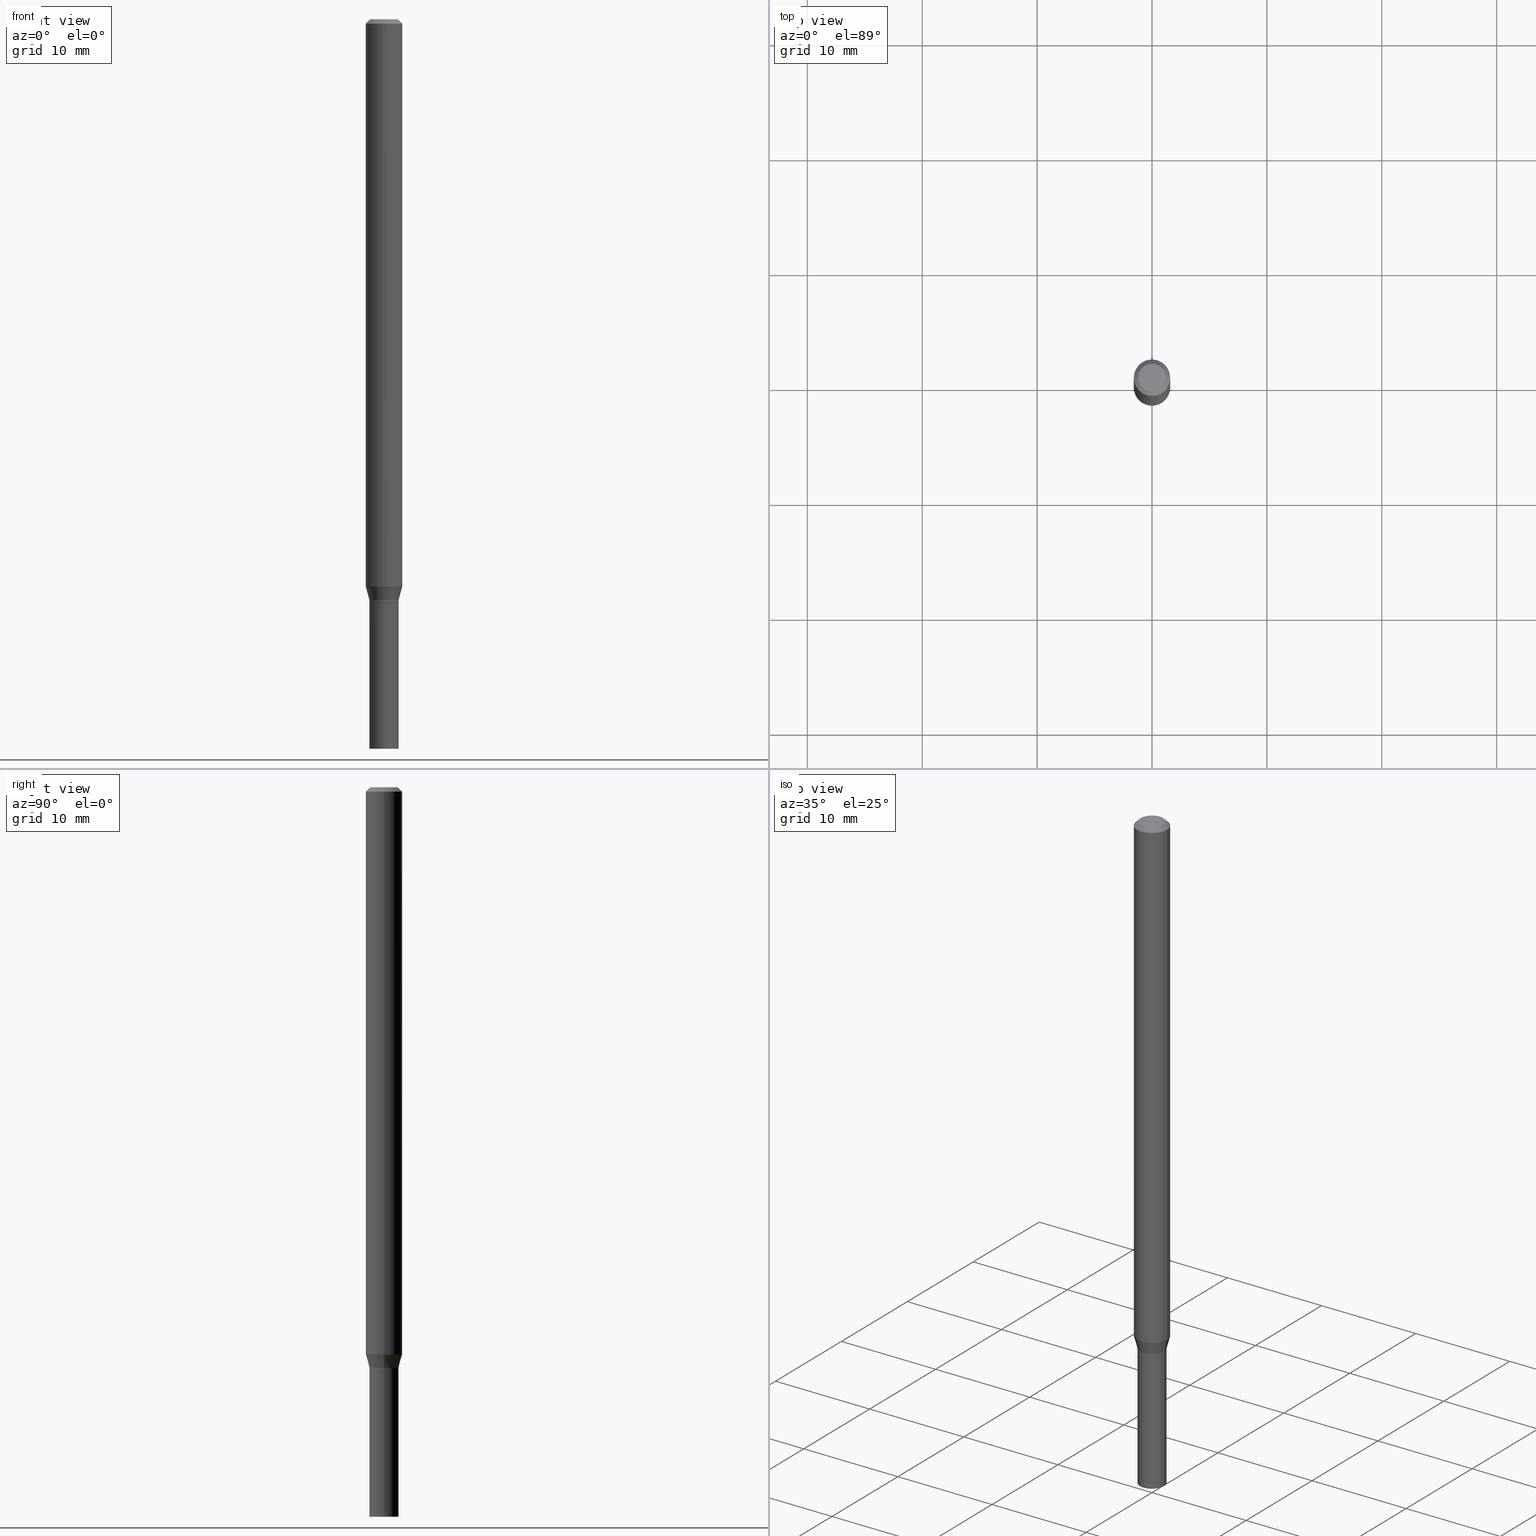
[diagram: canonical four-view strip — front | top / right | iso, engineering-drawing reading convention]
A machine part, canonical four-view strip (front | top / right | iso — engineering-drawing reading convention). The complete STEP part file that produces these views, byte-faithful:
ISO-10303-21;
HEADER;
FILE_DESCRIPTION (( 'STEP AP203' ),
    '1' );
FILE_NAME ('00607.STEP',
    '2024-03-19T22:00:35',
    ( '' ),
    ( '' ),
    'SwSTEP 2.0',
    'SolidWorks 2023',
    '' );
FILE_SCHEMA (( 'CONFIG_CONTROL_DESIGN' ));
ENDSEC;

DATA;
#1 = CIRCLE ( 'NONE', #52, 0.04999999999999965583 ) ;
#2 = CC_DESIGN_APPROVAL ( #128, ( #455 ) ) ;
#3 = ORIENTED_EDGE ( 'NONE', *, *, #288, .T. ) ;
#4 = CARTESIAN_POINT ( 'NONE',  ( 0.000000000000000000, 0.000000000000000000, 0.000000000000000000 ) ) ;
#5 = CARTESIAN_POINT ( 'NONE',  ( 0.000000000000000000, 0.000000000000000000, 0.000000000000000000 ) ) ;
#6 = DIRECTION ( 'NONE',  ( -2.445468806185136597E-29, 3.491481338843145583E-15, 1.000000000000000000 ) ) ;
#7 = EDGE_CURVE ( 'NONE', #125, #401, #287, .T. ) ;
#8 = VECTOR ( 'NONE', #408, 39.37007874015748854 ) ;
#9 = CIRCLE ( 'NONE', #73, 0.05000000000000000278 ) ;
#10 = ORIENTED_EDGE ( 'NONE', *, *, #91, .T. ) ;
#11 = EDGE_LOOP ( 'NONE', ( #299, #459 ) ) ;
#12 = ADVANCED_FACE ( 'NONE', ( #76 ), #369, .F. ) ;
#13 = ADVANCED_FACE ( 'NONE', ( #363 ), #239, .T. ) ;
#14 = SECURITY_CLASSIFICATION_LEVEL ( 'unclassified' ) ;
#15 = ORIENTED_EDGE ( 'NONE', *, *, #179, .T. ) ;
#16 = DIRECTION ( 'NONE',  ( 1.000000000000000000, -6.982962677686266711E-15, 4.876176775795935793E-29 ) ) ;
#17 = DATE_AND_TIME ( #261, #108 ) ;
#18 = DIRECTION ( 'NONE',  ( -2.438088387897960049E-29, 3.491481338843145188E-15, 1.000000000000000000 ) ) ;
#19 = AXIS2_PLACEMENT_3D ( 'NONE', #51, #156, #225 ) ;
#20 = EDGE_CURVE ( 'NONE', #105, #336, #206, .T. ) ;
#21 = ORIENTED_EDGE ( 'NONE', *, *, #219, .F. ) ;
#22 = DIRECTION ( 'NONE',  ( 1.000000000000000000, -6.982962677686267499E-15, 4.876176775795936353E-29 ) ) ;
#23 = DATE_TIME_ROLE ( 'classification_date' ) ;
#24 = DIRECTION ( 'NONE',  ( -2.445468806185136597E-29, 3.491481338843145583E-15, 1.000000000000000000 ) ) ;
#25 = ADVANCED_FACE ( 'NONE', ( #118 ), #335, .T. ) ;
#26 = CLOSED_SHELL ( 'NONE', ( #333, #360, #393, #442 ) ) ;
#27 = CARTESIAN_POINT ( 'NONE',  ( -0.04949999999999999539, -6.628594796310932821E-15, -2.000000000000000000 ) ) ;
#28 = PERSON_AND_ORGANIZATION ( #400, #387 ) ;
#29 = CARTESIAN_POINT ( 'NONE',  ( 4.866482924308422209E-29, -6.948047864297860305E-15, -1.989999999999999991 ) ) ;
#30 = EDGE_LOOP ( 'NONE', ( #378, #439 ) ) ;
#31 = ADVANCED_FACE ( 'NONE', ( #395 ), #280, .T. ) ;
#32 = AXIS2_PLACEMENT_3D ( 'NONE', #321, #275, #205 ) ;
#33 = DIRECTION ( 'NONE',  ( 1.000000000000000000, -6.982962677686266711E-15, 0.000000000000000000 ) ) ;
#34 = CARTESIAN_POINT ( 'NONE',  ( -0.04999999999999965583, -6.625945569136823198E-15, -1.999500000000000277 ) ) ;
#35 = CONICAL_SURFACE ( 'NONE', #101, 0.04999999999999963501, 0.2617993877991502960 ) ;
#36 = CIRCLE ( 'NONE', #113, 0.05000000000000000278 ) ;
#37 = DIRECTION ( 'NONE',  ( -2.445468806185136597E-29, 3.491481338843145583E-15, 1.000000000000000000 ) ) ;
#38 = ADVANCED_FACE ( 'NONE', ( #67 ), #222, .T. ) ;
#39 = DIRECTION ( 'NONE',  ( 1.000000000000000000, -6.982962677686266711E-15, 4.876176775795935793E-29 ) ) ;
#40 = CARTESIAN_POINT ( 'NONE',  ( 6.113672015462842613E-29, -8.728703347107864943E-15, -2.500000000000000000 ) ) ;
#41 = EDGE_CURVE ( 'NONE', #427, #158, #361, .T. ) ;
#42 = DIRECTION ( 'NONE',  ( -2.445468806185136597E-29, 3.491481338843145583E-15, 1.000000000000000000 ) ) ;
#43 = PERSON_AND_ORGANIZATION ( #400, #387 ) ;
#44 = CIRCLE ( 'NONE', #444, 0.04749999999999999362 ) ;
#45 = APPROVAL_PERSON_ORGANIZATION ( #132, #128, #302 ) ;
#46 = CARTESIAN_POINT ( 'NONE',  ( -0.06250000000000000000, 3.840629472727444916E-16, -0.01499999999999999944 ) ) ;
#47 = APPROVAL_STATUS ( 'not_yet_approved' ) ;
#48 = CYLINDRICAL_SURFACE ( 'NONE', #112, 0.06250000000000000000 ) ;
#49 = DIRECTION ( 'NONE',  ( -1.000000000000000000, 6.982962677686265922E-15, -4.876176775795935793E-29 ) ) ;
#50 = ORIENTED_EDGE ( 'NONE', *, *, #140, .F. ) ;
#51 = CARTESIAN_POINT ( 'NONE',  ( -8.549555613484746295E-45, 1.220649954903729740E-30, 3.496080421005988683E-16 ) ) ;
#52 = AXIS2_PLACEMENT_3D ( 'NONE', #95, #88, #92 ) ;
#53 = CALENDAR_DATE ( 2024, 19, 3 ) ;
#54 = DATE_TIME_ROLE ( 'creation_date' ) ;
#55 = DIRECTION ( 'NONE',  ( -2.445468806185136597E-29, 3.491481338843145583E-15, 1.000000000000000000 ) ) ;
#56 = COORDINATED_UNIVERSAL_TIME_OFFSET ( 5, 0, .BEHIND. ) ;
#57 = EDGE_LOOP ( 'NONE', ( #310, #15, #50, #454 ) ) ;
#58 = ADVANCED_FACE ( 'NONE', ( #68 ), #48, .T. ) ;
#59 = VECTOR ( 'NONE', #433, 39.37007874015748854 ) ;
#60 = ORIENTED_EDGE ( 'NONE', *, *, #177, .T. ) ;
#61 = MECHANICAL_CONTEXT ( 'NONE', #157, 'mechanical' ) ;
#62 = ORIENTED_EDGE ( 'NONE', *, *, #242, .F. ) ;
#63 = AXIS2_PLACEMENT_3D ( 'NONE', #346, #350, #22 ) ;
#64 = LINE ( 'NONE', #210, #130 ) ;
#65 = LINE ( 'NONE', #145, #405 ) ;
#66 = ADVANCED_FACE ( 'NONE', ( #213 ), #260, .T. ) ;
#67 = FACE_OUTER_BOUND ( 'NONE', #153, .T. ) ;
#68 = FACE_OUTER_BOUND ( 'NONE', #197, .T. ) ;
#69 = ORIENTED_EDGE ( 'NONE', *, *, #465, .T. ) ;
#70 = DIRECTION ( 'NONE',  ( -2.445468806185136597E-29, 3.491481338843145583E-15, 1.000000000000000000 ) ) ;
#71 = CONICAL_SURFACE ( 'NONE', #80, 0.04999999999999963501, 0.2617993877991502960 ) ;
#72 = DATE_AND_TIME ( #119, #170 ) ;
#73 = AXIS2_PLACEMENT_3D ( 'NONE', #161, #55, #309 ) ;
#74 = CARTESIAN_POINT ( 'NONE',  ( -0.06250000000000000000, -6.341078832569778591E-15, -1.943349364905387899 ) ) ;
#75 = FACE_OUTER_BOUND ( 'NONE', #57, .T. ) ;
#76 = FACE_OUTER_BOUND ( 'NONE', #30, .T. ) ;
#77 = PRODUCT_DEFINITION_SHAPE ( 'NONE', 'NONE',  #256 ) ;
#78 = CARTESIAN_POINT ( 'NONE',  ( 0.000000000000000000, 0.000000000000000000, 0.000000000000000000 ) ) ;
#79 = APPROVAL_ROLE ( '' ) ;
#80 = AXIS2_PLACEMENT_3D ( 'NONE', #217, #6, #366 ) ;
#81 = APPROVAL_PERSON_ORGANIZATION ( #102, #413, #458 ) ;
#82 = DIRECTION ( 'NONE',  ( -2.438088387897960049E-29, 3.491481338843145188E-15, 1.000000000000000000 ) ) ;
#83 = LINE ( 'NONE', #262, #207 ) ;
#84 = DIRECTION ( 'NONE',  ( -2.445468806185136597E-29, 3.491481338843145583E-15, 1.000000000000000000 ) ) ;
#85 = CARTESIAN_POINT ( 'NONE',  ( -0.04749999999999999362, 3.578768372314216422E-16, 3.496080421005964524E-16 ) ) ;
#86 = APPROVAL_DATE_TIME ( #17, #128 ) ;
#87 = ORIENTED_EDGE ( 'NONE', *, *, #124, .T. ) ;
#88 = DIRECTION ( 'NONE',  ( -2.445468806185136597E-29, 3.491481338843145583E-15, 1.000000000000000000 ) ) ;
#89 = EDGE_LOOP ( 'NONE', ( #176, #149, #94, #10 ) ) ;
#90 = AXIS2_PLACEMENT_3D ( 'NONE', #353, #42, #188 ) ;
#91 = EDGE_CURVE ( 'NONE', #336, #105, #186, .T. ) ;
#92 = DIRECTION ( 'NONE',  ( 1.000000000000000000, -6.982962677686264344E-15, 0.000000000000000000 ) ) ;
#93 = VECTOR ( 'NONE', #367, 39.37007874015748143 ) ;
#94 = ORIENTED_EDGE ( 'NONE', *, *, #109, .T. ) ;
#95 = CARTESIAN_POINT ( 'NONE',  ( 4.889714877967180953E-29, -6.981216937016870451E-15, -1.999500000000000277 ) ) ;
#96 = CARTESIAN_POINT ( 'NONE',  ( 4.890937612370273194E-29, -6.982962677686291165E-15, -2.000000000000000000 ) ) ;
#97 = CC_DESIGN_DATE_AND_TIME_ASSIGNMENT ( #200, #23, ( #204 ) ) ;
#98 = FACE_OUTER_BOUND ( 'NONE', #173, .T. ) ;
#99 = DATE_AND_TIME ( #133, #187 ) ;
#100 = ORIENTED_EDGE ( 'NONE', *, *, #388, .T. ) ;
#101 = AXIS2_PLACEMENT_3D ( 'NONE', #258, #215, #301 ) ;
#102 = PERSON_AND_ORGANIZATION ( #400, #387 ) ;
#103 = DIRECTION ( 'NONE',  ( -2.445468806185136597E-29, 3.491481338843145583E-15, 1.000000000000000000 ) ) ;
#104 = CARTESIAN_POINT ( 'NONE',  ( 0.04999999999999964889, -3.491481338843108703E-16, 2.438088387897950731E-30 ) ) ;
#105 = VERTEX_POINT ( 'NONE', #181 ) ;
#106 = CARTESIAN_POINT ( 'NONE',  ( -0.05000000000000000278, 3.552713678800501127E-16, -2.459467545127453311E-30 ) ) ;
#107 = CIRCLE ( 'NONE', #90, 0.06250000000000000000 ) ;
#108 = LOCAL_TIME ( 18, 0, 35.00000000000000000, #162 ) ;
#109 = EDGE_CURVE ( 'NONE', #220, #336, #290, .T. ) ;
#110 = DIRECTION ( 'NONE',  ( 1.000000000000000000, -6.982962677686274599E-15, 0.000000000000000000 ) ) ;
#111 = ORIENTED_EDGE ( 'NONE', *, *, #456, .T. ) ;
#112 = AXIS2_PLACEMENT_3D ( 'NONE', #78, #211, #16 ) ;
#113 = AXIS2_PLACEMENT_3D ( 'NONE', #448, #123, #266 ) ;
#114 = EDGE_LOOP ( 'NONE', ( #416, #137, #426, #232 ) ) ;
#115 = EDGE_LOOP ( 'NONE', ( #255, #402, #421, #218 ) ) ;
#116 = ORIENTED_EDGE ( 'NONE', *, *, #212, .F. ) ;
#117 = CARTESIAN_POINT ( 'NONE',  ( 0.000000000000000000, 0.000000000000000000, 0.000000000000000000 ) ) ;
#118 = FACE_OUTER_BOUND ( 'NONE', #263, .T. ) ;
#119 = CALENDAR_DATE ( 2024, 19, 3 ) ;
#120 = AXIS2_PLACEMENT_3D ( 'NONE', #229, #457, #121 ) ;
#121 = DIRECTION ( 'NONE',  ( 1.000000000000000000, -6.982962677686267499E-15, 4.876176775795936353E-29 ) ) ;
#122 = ORIENTED_EDGE ( 'NONE', *, *, #465, .F. ) ;
#123 = DIRECTION ( 'NONE',  ( -2.445468806185136597E-29, 3.491481338843145583E-15, 1.000000000000000000 ) ) ;
#124 = EDGE_CURVE ( 'NONE', #220, #253, #44, .T. ) ;
#125 = VERTEX_POINT ( 'NONE', #356 ) ;
#126 = CARTESIAN_POINT ( 'NONE',  ( 0.04949999999999999539, -7.328619330231760705E-15, -2.000000000000000000 ) ) ;
#127 = PERSON_AND_ORGANIZATION ( #400, #387 ) ;
#128 = APPROVAL ( #47, 'UNSPECIFIED' ) ;
#129 = DIRECTION ( 'NONE',  ( -0.7071067811865715536, 7.493145998870439357E-15, 0.7071067811865232589 ) ) ;
#130 = VECTOR ( 'NONE', #464, 39.37007874015748854 ) ;
#131 = VERTEX_POINT ( 'NONE', #450 ) ;
#132 = PERSON_AND_ORGANIZATION ( #400, #387 ) ;
#133 = CALENDAR_DATE ( 2024, 19, 3 ) ;
#134 = ORIENTED_EDGE ( 'NONE', *, *, #252, .T. ) ;
#135 = EDGE_LOOP ( 'NONE', ( #339, #111, #284, #380 ) ) ;
#136 = LOCAL_TIME ( 18, 0, 35.00000000000000000, #155 ) ;
#137 = ORIENTED_EDGE ( 'NONE', *, *, #317, .T. ) ;
#138 = EDGE_CURVE ( 'NONE', #195, #131, #141, .T. ) ;
#139 = CARTESIAN_POINT ( 'NONE',  ( 0.04999999999999963501, -7.297195998182170485E-15, -1.989999999999999991 ) ) ;
#140 = EDGE_CURVE ( 'NONE', #332, #461, #107, .T. ) ;
#141 = CIRCLE ( 'NONE', #315, 0.04999999999999963501 ) ;
#142 = AXIS2_PLACEMENT_3D ( 'NONE', #224, #374, #257 ) ;
#143 = CARTESIAN_POINT ( 'NONE',  ( 0.04949999999999999539, -7.328619330231760705E-15, -2.000000000000000000 ) ) ;
#144 = DESIGN_CONTEXT ( 'detailed design', #236, 'design' ) ;
#145 = CARTESIAN_POINT ( 'NONE',  ( -0.06250000000000000000, 4.440892098500626162E-16, -3.074334431409316114E-30 ) ) ;
#146 = LINE ( 'NONE', #251, #93 ) ;
#147 = CARTESIAN_POINT ( 'NONE',  ( -0.04999999999999963501, -6.592776496417813052E-15, -1.989999999999999991 ) ) ;
#148 = LINE ( 'NONE', #104, #364 ) ;
#149 = ORIENTED_EDGE ( 'NONE', *, *, #124, .F. ) ;
#150 = DIRECTION ( 'NONE',  ( -2.445468806185136597E-29, 3.491481338843145583E-15, 1.000000000000000000 ) ) ;
#151 = CARTESIAN_POINT ( 'NONE',  ( 4.890937612370273194E-29, -6.982962677686291165E-15, -2.000000000000000000 ) ) ;
#152 = ADVANCED_FACE ( 'NONE', ( #247 ), #35, .T. ) ;
#153 = EDGE_LOOP ( 'NONE', ( #325, #451, #234, #21 ) ) ;
#154 = DIRECTION ( 'NONE',  ( 2.445468806185136597E-29, -3.491481338843145583E-15, -1.000000000000000000 ) ) ;
#155 = COORDINATED_UNIVERSAL_TIME_OFFSET ( 5, 0, .BEHIND. ) ;
#156 = DIRECTION ( 'NONE',  ( -2.445468806185136597E-29, 3.491481338843145583E-15, 1.000000000000000000 ) ) ;
#157 = APPLICATION_CONTEXT ( 'configuration controlled 3d designs of mechanical parts and assemblies' ) ;
#158 = VERTEX_POINT ( 'NONE', #338 ) ;
#159 = CARTESIAN_POINT ( 'NONE',  ( -8.549555613484746295E-45, 1.220649954903729740E-30, 3.496080421005988683E-16 ) ) ;
#160 = CIRCLE ( 'NONE', #358, 0.04999999999999965583 ) ;
#161 = CARTESIAN_POINT ( 'NONE',  ( 4.890937612370273754E-29, -6.982962677686291954E-15, -2.000000000000000444 ) ) ;
#162 = COORDINATED_UNIVERSAL_TIME_OFFSET ( 5, 0, .BEHIND. ) ;
#163 = ORIENTED_EDGE ( 'NONE', *, *, #456, .F. ) ;
#164 = DIRECTION ( 'NONE',  ( 2.438088387897960049E-29, -3.491481338843145188E-15, -1.000000000000000000 ) ) ;
#165 = ADVANCED_FACE ( 'NONE', ( #75 ), #71, .T. ) ;
#166 = DIRECTION ( 'NONE',  ( 1.000000000000000000, -6.982962677686267499E-15, 0.000000000000000000 ) ) ;
#167 = CC_DESIGN_PERSON_AND_ORGANIZATION_ASSIGNMENT ( #238, #422, ( #256 ) ) ;
#168 = FACE_OUTER_BOUND ( 'NONE', #438, .T. ) ;
#169 = DIRECTION ( 'NONE',  ( 2.438088387897960049E-29, -3.491481338843145188E-15, -1.000000000000000000 ) ) ;
#170 = LOCAL_TIME ( 18, 0, 35.00000000000000000, #340 ) ;
#171 = APPROVAL_DATE_TIME ( #99, #413 ) ;
#172 = VERTEX_POINT ( 'NONE', #298 ) ;
#173 = EDGE_LOOP ( 'NONE', ( #362, #376, #243, #122 ) ) ;
#174 = ORIENTED_EDGE ( 'NONE', *, *, #41, .T. ) ;
#175 = VECTOR ( 'NONE', #392, 39.37007874015748143 ) ;
#176 = ORIENTED_EDGE ( 'NONE', *, *, #288, .F. ) ;
#177 = EDGE_CURVE ( 'NONE', #401, #125, #230, .T. ) ;
#178 = CC_DESIGN_DATE_AND_TIME_ASSIGNMENT ( #351, #54, ( #256 ) ) ;
#179 = EDGE_CURVE ( 'NONE', #131, #461, #396, .T. ) ;
#180 = CARTESIAN_POINT ( 'NONE',  ( 3.668203209277705088E-31, -5.237222008264718399E-17, -0.01499999999999999944 ) ) ;
#181 = CARTESIAN_POINT ( 'NONE',  ( 0.06250000000000000000, -4.888073874380388472E-16, -0.01499999999999999944 ) ) ;
#182 = CC_DESIGN_APPROVAL ( #413, ( #256 ) ) ;
#183 = LINE ( 'NONE', #334, #259 ) ;
#184 = CARTESIAN_POINT ( 'NONE',  ( 4.890937612370273194E-29, -6.982962677686291165E-15, -2.000000000000000000 ) ) ;
#185 = DIRECTION ( 'NONE',  ( -2.445468806185136877E-29, 3.491481338843145188E-15, 1.000000000000000000 ) ) ;
#186 = CIRCLE ( 'NONE', #435, 0.06250000000000000000 ) ;
#187 = LOCAL_TIME ( 18, 0, 35.00000000000000000, #56 ) ;
#188 = DIRECTION ( 'NONE',  ( 1.000000000000000000, -6.982962677686262766E-15, 0.000000000000000000 ) ) ;
#189 = ORIENTED_EDGE ( 'NONE', *, *, #179, .F. ) ;
#190 = ADVANCED_FACE ( 'NONE', ( #452 ), #415, .T. ) ;
#191 = PERSON_AND_ORGANIZATION_ROLE ( 'creator' ) ;
#192 = CC_DESIGN_PERSON_AND_ORGANIZATION_ASSIGNMENT ( #311, #441, ( #204 ) ) ;
#193 = FACE_OUTER_BOUND ( 'NONE', #115, .T. ) ;
#194 = DIRECTION ( 'NONE',  ( 0.2588190451025216832, 1.565188264969619798E-15, 0.9659258262890679791 ) ) ;
#195 = VERTEX_POINT ( 'NONE', #139 ) ;
#196 = AXIS2_PLACEMENT_3D ( 'NONE', #337, #150, #300 ) ;
#197 = EDGE_LOOP ( 'NONE', ( #163, #423, #352, #228 ) ) ;
#198 = PLANE ( 'NONE',  #324 ) ;
#199 = EDGE_CURVE ( 'NONE', #463, #131, #323, .T. ) ;
#200 = DATE_AND_TIME ( #53, #136 ) ;
#201 = FACE_OUTER_BOUND ( 'NONE', #398, .T. ) ;
#202 = PLANE ( 'NONE',  #231 ) ;
#203 = COORDINATED_UNIVERSAL_TIME_OFFSET ( 5, 0, .BEHIND. ) ;
#204 = SECURITY_CLASSIFICATION ( '', '', #14 ) ;
#205 = DIRECTION ( 'NONE',  ( 1.000000000000000000, 0.000000000000000000, 0.000000000000000000 ) ) ;
#206 = CIRCLE ( 'NONE', #142, 0.06250000000000000000 ) ;
#207 = VECTOR ( 'NONE', #194, 39.37007874015748143 ) ;
#208 = CC_DESIGN_PERSON_AND_ORGANIZATION_ASSIGNMENT ( #43, #191, ( #455 ) ) ;
#209 = DIRECTION ( 'NONE',  ( -1.000000000000000000, 6.982962677686266711E-15, 0.000000000000000000 ) ) ;
#210 = CARTESIAN_POINT ( 'NONE',  ( 0.06250000000000000000, -4.811533449433679005E-16, -0.01499999999999999944 ) ) ;
#211 = DIRECTION ( 'NONE',  ( -2.445468806185136597E-29, 3.491481338843145583E-15, 1.000000000000000000 ) ) ;
#212 = EDGE_CURVE ( 'NONE', #401, #345, #146, .T. ) ;
#213 = FACE_OUTER_BOUND ( 'NONE', #135, .T. ) ;
#214 = AXIS2_PLACEMENT_3D ( 'NONE', #96, #283, #365 ) ;
#215 = DIRECTION ( 'NONE',  ( -2.445468806185136597E-29, 3.491481338843145583E-15, 1.000000000000000000 ) ) ;
#216 = ORIENTED_EDGE ( 'NONE', *, *, #317, .F. ) ;
#217 = CARTESIAN_POINT ( 'NONE',  ( 4.866482924308422209E-29, -6.948047864297860305E-15, -1.989999999999999991 ) ) ;
#218 = ORIENTED_EDGE ( 'NONE', *, *, #388, .F. ) ;
#219 = EDGE_CURVE ( 'NONE', #158, #195, #148, .T. ) ;
#220 = VERTEX_POINT ( 'NONE', #85 ) ;
#221 =( NAMED_UNIT ( * ) SI_UNIT ( $, .STERADIAN. ) SOLID_ANGLE_UNIT ( ) );
#222 = CYLINDRICAL_SURFACE ( 'NONE', #404, 0.04999999999999964889 ) ;
#223 = CARTESIAN_POINT ( 'NONE',  ( -0.04999999999999964889, 3.552713678800475982E-16, -2.459467545127435795E-30 ) ) ;
#224 = CARTESIAN_POINT ( 'NONE',  ( 3.668203209277705088E-31, -5.237222008264718399E-17, -0.01499999999999999944 ) ) ;
#225 = DIRECTION ( 'NONE',  ( 1.000000000000000000, -6.982962677686267499E-15, 4.852736867747366768E-29 ) ) ;
#226 = ORIENTED_EDGE ( 'NONE', *, *, #20, .T. ) ;
#227 = PERSON_AND_ORGANIZATION ( #400, #387 ) ;
#228 = ORIENTED_EDGE ( 'NONE', *, *, #91, .F. ) ;
#229 = CARTESIAN_POINT ( 'NONE',  ( 0.000000000000000000, 0.000000000000000000, 0.000000000000000000 ) ) ;
#230 = CIRCLE ( 'NONE', #357, 0.05000000000000000278 ) ;
#231 = AXIS2_PLACEMENT_3D ( 'NONE', #341, #169, #319 ) ;
#232 = ORIENTED_EDGE ( 'NONE', *, *, #41, .F. ) ;
#233 = CYLINDRICAL_SURFACE ( 'NONE', #63, 0.05000000000000000278 ) ;
#234 = ORIENTED_EDGE ( 'NONE', *, *, #138, .F. ) ;
#235 = APPROVAL_STATUS ( 'not_yet_approved' ) ;
#236 = APPLICATION_CONTEXT ( 'configuration controlled 3d designs of mechanical parts and assemblies' ) ;
#237 = CYLINDRICAL_SURFACE ( 'NONE', #271, 0.04999999999999964889 ) ;
#238 = PERSON_AND_ORGANIZATION ( #400, #387 ) ;
#239 = CONICAL_SURFACE ( 'NONE', #270, 0.06250000000000000000, 0.7853981633974367327 ) ;
#240 = APPROVAL_STATUS ( 'not_yet_approved' ) ;
#241 = CARTESIAN_POINT ( 'NONE',  ( 4.890937612370273194E-29, -6.982962677686291165E-15, -2.000000000000000000 ) ) ;
#242 = EDGE_CURVE ( 'NONE', #463, #158, #160, .T. ) ;
#243 = ORIENTED_EDGE ( 'NONE', *, *, #219, .T. ) ;
#244 = CIRCLE ( 'NONE', #297, 0.04949999999999999539 ) ;
#245 = ORIENTED_EDGE ( 'NONE', *, *, #294, .F. ) ;
#246 =( NAMED_UNIT ( * ) PLANE_ANGLE_UNIT ( ) SI_UNIT ( $, .RADIAN. ) );
#247 = FACE_OUTER_BOUND ( 'NONE', #385, .T. ) ;
#248 = MANIFOLD_SOLID_BREP ( 'Body-Move/Copy2[1]', #26 ) ;
#249 = VERTEX_POINT ( 'NONE', #27 ) ;
#250 = LENGTH_MEASURE_WITH_UNIT ( LENGTH_MEASURE( 0.02539999999999999897 ), #292 );
#251 = CARTESIAN_POINT ( 'NONE',  ( 0.05000000000000000278, -3.491481338843133848E-16, 2.438088387897968247E-30 ) ) ;
#252 = EDGE_CURVE ( 'NONE', #249, #427, #381, .T. ) ;
#253 = VERTEX_POINT ( 'NONE', #368 ) ;
#254 = CC_DESIGN_PERSON_AND_ORGANIZATION_ASSIGNMENT ( #28, #279, ( #265 ) ) ;
#255 = ORIENTED_EDGE ( 'NONE', *, *, #277, .F. ) ;
#256 = PRODUCT_DEFINITION ( 'UNKNOWN', '', #455, #144 ) ;
#257 = DIRECTION ( 'NONE',  ( 1.000000000000000000, -6.982962677686266711E-15, 0.000000000000000000 ) ) ;
#258 = CARTESIAN_POINT ( 'NONE',  ( 4.866482924308422209E-29, -6.948047864297860305E-15, -1.989999999999999991 ) ) ;
#259 = VECTOR ( 'NONE', #285, 39.37007874015748143 ) ;
#260 = CYLINDRICAL_SURFACE ( 'NONE', #389, 0.06250000000000000000 ) ;
#261 = CALENDAR_DATE ( 2024, 19, 3 ) ;
#262 = CARTESIAN_POINT ( 'NONE',  ( 0.04999999999999963501, -7.297195998182170485E-15, -1.989999999999999991 ) ) ;
#263 = EDGE_LOOP ( 'NONE', ( #216, #134, #174, #62 ) ) ;
#264 = DIRECTION ( 'NONE',  ( 1.000000000000000000, -6.982962677686265922E-15, 4.876176775795935793E-29 ) ) ;
#265 = PRODUCT ( '00607', '00607', '', ( #61 ) ) ;
#266 = DIRECTION ( 'NONE',  ( 1.000000000000000000, -6.982962677686274599E-15, 0.000000000000000000 ) ) ;
#267 = DIRECTION ( 'NONE',  ( -2.445468806185136597E-29, 3.491481338843145583E-15, 1.000000000000000000 ) ) ;
#268 = CARTESIAN_POINT ( 'NONE',  ( 4.890937612370273194E-29, -6.982962677686291165E-15, -2.000000000000000000 ) ) ;
#269 = ORIENTED_EDGE ( 'NONE', *, *, #371, .T. ) ;
#270 = AXIS2_PLACEMENT_3D ( 'NONE', #180, #154, #434 ) ;
#271 = AXIS2_PLACEMENT_3D ( 'NONE', #5, #70, #39 ) ;
#272 = CARTESIAN_POINT ( 'NONE',  ( -0.04949999999999999539, -6.631244023485041655E-15, -2.000000000000000000 ) ) ;
#273 = ORIENTED_EDGE ( 'NONE', *, *, #328, .T. ) ;
#274 = EDGE_CURVE ( 'NONE', #332, #105, #183, .T. ) ;
#275 = DIRECTION ( 'NONE',  ( 0.000000000000000000, 0.000000000000000000, 1.000000000000000000 ) ) ;
#276 = DIRECTION ( 'NONE',  ( -2.445468806185136597E-29, 3.491481338843145583E-15, 1.000000000000000000 ) ) ;
#277 = EDGE_CURVE ( 'NONE', #125, #172, #429, .T. ) ;
#278 = ORIENTED_EDGE ( 'NONE', *, *, #328, .F. ) ;
#279 = PERSON_AND_ORGANIZATION_ROLE ( 'design_owner' ) ;
#280 = CONICAL_SURFACE ( 'NONE', #296, 0.06250000000000000000, 0.7853981633974367327 ) ;
#281 = CIRCLE ( 'NONE', #289, 0.06250000000000000000 ) ;
#282 = DIMENSIONAL_EXPONENTS ( 1.000000000000000000, 0.000000000000000000, 0.000000000000000000, 0.000000000000000000, 0.000000000000000000, 0.000000000000000000, 0.000000000000000000 ) ;
#283 = DIRECTION ( 'NONE',  ( -2.445468806185136597E-29, 3.491481338843145583E-15, 1.000000000000000000 ) ) ;
#284 = ORIENTED_EDGE ( 'NONE', *, *, #20, .F. ) ;
#285 = DIRECTION ( 'NONE',  ( -2.445468806185136877E-29, 3.491481338843145188E-15, 1.000000000000000000 ) ) ;
#286 = DIRECTION ( 'NONE',  ( 1.000000000000000000, -6.982962677686266711E-15, 4.876176775795935793E-29 ) ) ;
#287 = CIRCLE ( 'NONE', #305, 0.05000000000000000278 ) ;
#288 = EDGE_CURVE ( 'NONE', #253, #105, #64, .T. ) ;
#289 = AXIS2_PLACEMENT_3D ( 'NONE', #462, #37, #437 ) ;
#290 = LINE ( 'NONE', #46, #8 ) ;
#291 =( CONVERSION_BASED_UNIT ( 'INCH', #250 ) LENGTH_UNIT ( ) NAMED_UNIT ( #282 ) );
#292 =( LENGTH_UNIT ( ) NAMED_UNIT ( * ) SI_UNIT ( $, .METRE. ) );
#293 = SHAPE_DEFINITION_REPRESENTATION ( #77, #326 ) ;
#294 = EDGE_CURVE ( 'NONE', #461, #332, #281, .T. ) ;
#295 = DIRECTION ( 'NONE',  ( 1.000000000000000000, -6.982962677686265133E-15, 0.000000000000000000 ) ) ;
#296 = AXIS2_PLACEMENT_3D ( 'NONE', #329, #303, #209 ) ;
#297 = AXIS2_PLACEMENT_3D ( 'NONE', #268, #24, #382 ) ;
#298 = CARTESIAN_POINT ( 'NONE',  ( -0.05000000000000000278, -7.500561644517028040E-15, -2.000000000000000444 ) ) ;
#299 = ORIENTED_EDGE ( 'NONE', *, *, #177, .F. ) ;
#300 = DIRECTION ( 'NONE',  ( 1.000000000000000000, -6.982962677686267499E-15, 0.000000000000000000 ) ) ;
#301 = DIRECTION ( 'NONE',  ( 1.000000000000000000, -6.982962677686267499E-15, 0.000000000000000000 ) ) ;
#302 = APPROVAL_ROLE ( '' ) ;
#303 = DIRECTION ( 'NONE',  ( 2.445468806185136597E-29, -3.491481338843145583E-15, -1.000000000000000000 ) ) ;
#304 = CARTESIAN_POINT ( 'NONE',  ( 6.198122052593289668E-29, -8.607766087339451973E-15, -2.500000000000000000 ) ) ;
#305 = AXIS2_PLACEMENT_3D ( 'NONE', #40, #267, #412 ) ;
#306 = CIRCLE ( 'NONE', #19, 0.04749999999999999362 ) ;
#307 = DIRECTION ( 'NONE',  ( -2.445468806185136597E-29, 3.491481338843145583E-15, 1.000000000000000000 ) ) ;
#308 = DIRECTION ( 'NONE',  ( -2.445468806185136877E-29, 3.491481338843145188E-15, 1.000000000000000000 ) ) ;
#309 = DIRECTION ( 'NONE',  ( 1.000000000000000000, -6.982962677686274599E-15, 0.000000000000000000 ) ) ;
#310 = ORIENTED_EDGE ( 'NONE', *, *, #138, .T. ) ;
#311 = PERSON_AND_ORGANIZATION ( #400, #387 ) ;
#312 = ORIENTED_EDGE ( 'NONE', *, *, #371, .F. ) ;
#313 = CARTESIAN_POINT ( 'NONE',  ( 0.05000000000000000278, -9.077851480992178278E-15, -2.500000000000000000 ) ) ;
#314 = CYLINDRICAL_SURFACE ( 'NONE', #120, 0.05000000000000000278 ) ;
#315 = AXIS2_PLACEMENT_3D ( 'NONE', #29, #84, #166 ) ;
#316 = CIRCLE ( 'NONE', #196, 0.04999999999999963501 ) ;
#317 = EDGE_CURVE ( 'NONE', #249, #463, #445, .T. ) ;
#318 = PRODUCT_RELATED_PRODUCT_CATEGORY ( 'detail', '', ( #265 ) ) ;
#319 = DIRECTION ( 'NONE',  ( -1.000000000000000000, 6.982962677686265922E-15, -4.876176775795935793E-29 ) ) ;
#320 = CALENDAR_DATE ( 2024, 19, 3 ) ;
#321 = CARTESIAN_POINT ( 'NONE',  ( 0.000000000000000000, 0.000000000000000000, 0.000000000000000000 ) ) ;
#322 = ORIENTED_EDGE ( 'NONE', *, *, #109, .F. ) ;
#323 = LINE ( 'NONE', #223, #397 ) ;
#324 = AXIS2_PLACEMENT_3D ( 'NONE', #304, #18, #409 ) ;
#325 = ORIENTED_EDGE ( 'NONE', *, *, #348, .T. ) ;
#326 = ADVANCED_BREP_SHAPE_REPRESENTATION ( '00607', ( #248, #411, #32 ), #390 ) ;
#327 = DIRECTION ( 'NONE',  ( -2.445468806185136877E-29, 3.491481338843145188E-15, 1.000000000000000000 ) ) ;
#328 = EDGE_CURVE ( 'NONE', #253, #220, #306, .T. ) ;
#329 = CARTESIAN_POINT ( 'NONE',  ( 3.668203209277705088E-31, -5.237222008264718399E-17, -0.01499999999999999944 ) ) ;
#330 = DIRECTION ( 'NONE',  ( 1.000000000000000000, -6.982962677686266711E-15, 4.876176775795935793E-29 ) ) ;
#331 = UNCERTAINTY_MEASURE_WITH_UNIT (LENGTH_MEASURE( 1.000000000000000082E-05 ), #291, 'distance_accuracy_value', 'NONE');
#332 = VERTEX_POINT ( 'NONE', #414 ) ;
#333 = ADVANCED_FACE ( 'NONE', ( #168 ), #314, .T. ) ;
#334 = CARTESIAN_POINT ( 'NONE',  ( 0.06250000000000000000, -4.364351673553916694E-16, 3.047610484872459871E-30 ) ) ;
#335 = CONICAL_SURFACE ( 'NONE', #379, 0.04949999999999999539, 0.7853981633974824739 ) ;
#336 = VERTEX_POINT ( 'NONE', #418 ) ;
#337 = CARTESIAN_POINT ( 'NONE',  ( 4.866482924308422209E-29, -6.948047864297860305E-15, -1.989999999999999991 ) ) ;
#338 = CARTESIAN_POINT ( 'NONE',  ( 0.04999999999999965583, -7.330365070901181419E-15, -1.999500000000000277 ) ) ;
#339 = ORIENTED_EDGE ( 'NONE', *, *, #140, .T. ) ;
#340 = COORDINATED_UNIVERSAL_TIME_OFFSET ( 5, 0, .BEHIND. ) ;
#341 = CARTESIAN_POINT ( 'NONE',  ( 3.491481338843621956E-16, 0.04999999999999302225, -2.000000000000000444 ) ) ;
#342 = DIRECTION ( 'NONE',  ( -2.445468806185136597E-29, 3.491481338843145583E-15, 1.000000000000000000 ) ) ;
#343 = EDGE_LOOP ( 'NONE', ( #87, #273 ) ) ;
#344 = VECTOR ( 'NONE', #399, 39.37007874015748143 ) ;
#345 = VERTEX_POINT ( 'NONE', #453 ) ;
#346 = CARTESIAN_POINT ( 'NONE',  ( 0.000000000000000000, 0.000000000000000000, 0.000000000000000000 ) ) ;
#347 = CARTESIAN_POINT ( 'NONE',  ( 3.316907271900976096E-16, 0.04749999999999999362, 8.958657455250042346E-18 ) ) ;
#348 = EDGE_CURVE ( 'NONE', #158, #463, #1, .T. ) ;
#349 = ADVANCED_FACE ( 'NONE', ( #383 ), #375, .F. ) ;
#350 = DIRECTION ( 'NONE',  ( -2.445468806185136597E-29, 3.491481338843145583E-15, 1.000000000000000000 ) ) ;
#351 = DATE_AND_TIME ( #320, #446 ) ;
#352 = ORIENTED_EDGE ( 'NONE', *, *, #274, .T. ) ;
#353 = CARTESIAN_POINT ( 'NONE',  ( 4.752400251395822950E-29, -6.785168042419840419E-15, -1.943349364905387899 ) ) ;
#354 = CC_DESIGN_APPROVAL ( #391, ( #204 ) ) ;
#355 = APPLICATION_PROTOCOL_DEFINITION ( 'international standard', 'config_control_design', 1994, #157 ) ;
#356 = CARTESIAN_POINT ( 'NONE',  ( -0.05000000000000000278, -7.500561644517028040E-15, -2.500000000000000000 ) ) ;
#357 = AXIS2_PLACEMENT_3D ( 'NONE', #373, #342, #110 ) ;
#358 = AXIS2_PLACEMENT_3D ( 'NONE', #384, #103, #425 ) ;
#359 = EDGE_CURVE ( 'NONE', #195, #332, #83, .T. ) ;
#360 = ADVANCED_FACE ( 'NONE', ( #419 ), #198, .F. ) ;
#361 = LINE ( 'NONE', #143, #59 ) ;
#362 = ORIENTED_EDGE ( 'NONE', *, *, #199, .F. ) ;
#363 = FACE_OUTER_BOUND ( 'NONE', #410, .T. ) ;
#364 = VECTOR ( 'NONE', #327, 39.37007874015748143 ) ;
#365 = DIRECTION ( 'NONE',  ( 1.000000000000000000, -6.982962677686265133E-15, 0.000000000000000000 ) ) ;
#366 = DIRECTION ( 'NONE',  ( 1.000000000000000000, -6.982962677686267499E-15, 0.000000000000000000 ) ) ;
#367 = DIRECTION ( 'NONE',  ( -2.445468806185136877E-29, 3.491481338843145188E-15, 1.000000000000000000 ) ) ;
#368 = CARTESIAN_POINT ( 'NONE',  ( 0.04749999999999999362, -4.035134999187572214E-16, 3.496080421006014321E-16 ) ) ;
#369 = PLANE ( 'NONE',  #431 ) ;
#370 = APPROVAL_PERSON_ORGANIZATION ( #127, #391, #79 ) ;
#371 = EDGE_CURVE ( 'NONE', #345, #172, #9, .T. ) ;
#372 = DIRECTION ( 'NONE',  ( -2.445468806185136597E-29, 3.491481338843145583E-15, 1.000000000000000000 ) ) ;
#373 = CARTESIAN_POINT ( 'NONE',  ( 6.113672015462842613E-29, -8.728703347107864943E-15, -2.500000000000000000 ) ) ;
#374 = DIRECTION ( 'NONE',  ( -2.445468806185136597E-29, 3.491481338843145583E-15, 1.000000000000000000 ) ) ;
#375 = PLANE ( 'NONE',  #436 ) ;
#376 = ORIENTED_EDGE ( 'NONE', *, *, #242, .T. ) ;
#377 = PERSON_AND_ORGANIZATION_ROLE ( 'design_supplier' ) ;
#378 = ORIENTED_EDGE ( 'NONE', *, *, #428, .F. ) ;
#379 = AXIS2_PLACEMENT_3D ( 'NONE', #151, #394, #403 ) ;
#380 = ORIENTED_EDGE ( 'NONE', *, *, #274, .F. ) ;
#381 = CIRCLE ( 'NONE', #417, 0.04949999999999999539 ) ;
#382 = DIRECTION ( 'NONE',  ( 1.000000000000000000, -6.982962677686265133E-15, 0.000000000000000000 ) ) ;
#383 = FACE_OUTER_BOUND ( 'NONE', #343, .T. ) ;
#384 = CARTESIAN_POINT ( 'NONE',  ( 4.889714877967180953E-29, -6.981216937016870451E-15, -1.999500000000000277 ) ) ;
#385 = EDGE_LOOP ( 'NONE', ( #189, #69, #460, #245 ) ) ;
#386 = CLOSED_SHELL ( 'NONE', ( #38, #190, #13, #66, #165, #152, #58, #31, #349, #12, #25, #449 ) ) ;
#387 = ORGANIZATION ( 'UNSPECIFIED', 'UNSPECIFIED', '' ) ;
#388 = EDGE_CURVE ( 'NONE', #172, #345, #36, .T. ) ;
#389 = AXIS2_PLACEMENT_3D ( 'NONE', #4, #440, #330 ) ;
#390 =( GEOMETRIC_REPRESENTATION_CONTEXT ( 3 ) GLOBAL_UNCERTAINTY_ASSIGNED_CONTEXT ( ( #331 ) ) GLOBAL_UNIT_ASSIGNED_CONTEXT ( ( #291, #246, #221 ) ) REPRESENTATION_CONTEXT ( 'NONE', 'WORKASPACE' ) );
#391 = APPROVAL ( #235, 'UNSPECIFIED' ) ;
#392 = DIRECTION ( 'NONE',  ( -2.445468806185136877E-29, 3.491481338843145188E-15, 1.000000000000000000 ) ) ;
#393 = ADVANCED_FACE ( 'NONE', ( #193 ), #233, .T. ) ;
#394 = DIRECTION ( 'NONE',  ( -2.445468806185136597E-29, 3.491481338843145583E-15, 1.000000000000000000 ) ) ;
#395 = FACE_OUTER_BOUND ( 'NONE', #89, .T. ) ;
#396 = LINE ( 'NONE', #147, #344 ) ;
#397 = VECTOR ( 'NONE', #308, 39.37007874015748143 ) ;
#398 = EDGE_LOOP ( 'NONE', ( #269, #100 ) ) ;
#399 = DIRECTION ( 'NONE',  ( -0.2588190451025216832, 5.211531920934551831E-15, 0.9659258262890679791 ) ) ;
#400 = PERSON ( 'UNSPECIFIED', 'UNSPECIFIED', 'UNSPECIFIED', ('UNSPECIFIED'), ('UNSPECIFIED'), ('UNSPECIFIED') ) ;
#401 = VERTEX_POINT ( 'NONE', #313 ) ;
#402 = ORIENTED_EDGE ( 'NONE', *, *, #7, .T. ) ;
#403 = DIRECTION ( 'NONE',  ( 1.000000000000000000, -6.982962677686265133E-15, 0.000000000000000000 ) ) ;
#404 = AXIS2_PLACEMENT_3D ( 'NONE', #117, #466, #286 ) ;
#405 = VECTOR ( 'NONE', #185, 39.37007874015748143 ) ;
#406 = ORIENTED_EDGE ( 'NONE', *, *, #277, .T. ) ;
#407 = CC_DESIGN_PERSON_AND_ORGANIZATION_ASSIGNMENT ( #227, #377, ( #455 ) ) ;
#408 = DIRECTION ( 'NONE',  ( -0.7071067811865392461, 2.468850131082170680E-15, -0.7071067811865555663 ) ) ;
#409 = DIRECTION ( 'NONE',  ( 1.000000000000000000, -6.982962677686265922E-15, 4.876176775795935793E-29 ) ) ;
#410 = EDGE_LOOP ( 'NONE', ( #278, #3, #226, #322 ) ) ;
#411 = MANIFOLD_SOLID_BREP ( 'Body-Move/Copy2[2]', #386 ) ;
#412 = DIRECTION ( 'NONE',  ( 1.000000000000000000, -6.982962677686274599E-15, 0.000000000000000000 ) ) ;
#413 = APPROVAL ( #240, 'UNSPECIFIED' ) ;
#414 = CARTESIAN_POINT ( 'NONE',  ( 0.06250000000000000000, -7.221603209775232877E-15, -1.943349364905387899 ) ) ;
#415 = CONICAL_SURFACE ( 'NONE', #214, 0.04949999999999999539, 0.7853981633974824739 ) ;
#416 = ORIENTED_EDGE ( 'NONE', *, *, #428, .T. ) ;
#417 = AXIS2_PLACEMENT_3D ( 'NONE', #241, #276, #295 ) ;
#418 = CARTESIAN_POINT ( 'NONE',  ( -0.06250000000000000000, -2.974680921401181724E-15, -0.01499999999999999944 ) ) ;
#419 = FACE_OUTER_BOUND ( 'NONE', #11, .T. ) ;
#420 = APPLICATION_PROTOCOL_DEFINITION ( 'international standard', 'config_control_design', 1994, #236 ) ;
#421 = ORIENTED_EDGE ( 'NONE', *, *, #212, .T. ) ;
#422 = PERSON_AND_ORGANIZATION_ROLE ( 'creator' ) ;
#423 = ORIENTED_EDGE ( 'NONE', *, *, #294, .T. ) ;
#424 = VECTOR ( 'NONE', #129, 39.37007874015748854 ) ;
#425 = DIRECTION ( 'NONE',  ( 1.000000000000000000, -6.982962677686264344E-15, 0.000000000000000000 ) ) ;
#426 = ORIENTED_EDGE ( 'NONE', *, *, #348, .F. ) ;
#427 = VERTEX_POINT ( 'NONE', #126 ) ;
#428 = EDGE_CURVE ( 'NONE', #427, #249, #244, .T. ) ;
#429 = LINE ( 'NONE', #106, #175 ) ;
#430 = APPROVAL_DATE_TIME ( #72, #391 ) ;
#431 = AXIS2_PLACEMENT_3D ( 'NONE', #184, #82, #264 ) ;
#432 = CC_DESIGN_SECURITY_CLASSIFICATION ( #204, ( #455 ) ) ;
#433 = DIRECTION ( 'NONE',  ( 0.7071067811865715536, -2.468850131082509496E-15, 0.7071067811865232589 ) ) ;
#434 = DIRECTION ( 'NONE',  ( -1.000000000000000000, 6.982962677686266711E-15, 0.000000000000000000 ) ) ;
#435 = AXIS2_PLACEMENT_3D ( 'NONE', #443, #372, #33 ) ;
#436 = AXIS2_PLACEMENT_3D ( 'NONE', #347, #164, #49 ) ;
#437 = DIRECTION ( 'NONE',  ( 1.000000000000000000, -6.982962677686262766E-15, 0.000000000000000000 ) ) ;
#438 = EDGE_LOOP ( 'NONE', ( #60, #406, #312, #116 ) ) ;
#439 = ORIENTED_EDGE ( 'NONE', *, *, #252, .F. ) ;
#440 = DIRECTION ( 'NONE',  ( -2.445468806185136597E-29, 3.491481338843145583E-15, 1.000000000000000000 ) ) ;
#441 = PERSON_AND_ORGANIZATION_ROLE ( 'classification_officer' ) ;
#442 = ADVANCED_FACE ( 'NONE', ( #201 ), #202, .F. ) ;
#443 = CARTESIAN_POINT ( 'NONE',  ( 3.668203209277705088E-31, -5.237222008264718399E-17, -0.01499999999999999944 ) ) ;
#444 = AXIS2_PLACEMENT_3D ( 'NONE', #159, #307, #447 ) ;
#445 = LINE ( 'NONE', #272, #424 ) ;
#446 = LOCAL_TIME ( 18, 0, 35.00000000000000000, #203 ) ;
#447 = DIRECTION ( 'NONE',  ( 1.000000000000000000, -6.982962677686267499E-15, 4.852736867747366768E-29 ) ) ;
#448 = CARTESIAN_POINT ( 'NONE',  ( 4.890937612370273754E-29, -6.982962677686291954E-15, -2.000000000000000444 ) ) ;
#449 = ADVANCED_FACE ( 'NONE', ( #98 ), #237, .T. ) ;
#450 = CARTESIAN_POINT ( 'NONE',  ( -0.04999999999999963501, -6.466927664493795822E-15, -1.989999999999999991 ) ) ;
#451 = ORIENTED_EDGE ( 'NONE', *, *, #199, .T. ) ;
#452 = FACE_OUTER_BOUND ( 'NONE', #114, .T. ) ;
#453 = CARTESIAN_POINT ( 'NONE',  ( 0.05000000000000000278, -7.332110811570605290E-15, -2.000000000000000444 ) ) ;
#454 = ORIENTED_EDGE ( 'NONE', *, *, #359, .F. ) ;
#455 = PRODUCT_DEFINITION_FORMATION_WITH_SPECIFIED_SOURCE ( 'ANY', '', #265, .NOT_KNOWN. ) ;
#456 = EDGE_CURVE ( 'NONE', #461, #336, #65, .T. ) ;
#457 = DIRECTION ( 'NONE',  ( -2.445468806185136597E-29, 3.491481338843145583E-15, 1.000000000000000000 ) ) ;
#458 = APPROVAL_ROLE ( '' ) ;
#459 = ORIENTED_EDGE ( 'NONE', *, *, #7, .F. ) ;
#460 = ORIENTED_EDGE ( 'NONE', *, *, #359, .T. ) ;
#461 = VERTEX_POINT ( 'NONE', #74 ) ;
#462 = CARTESIAN_POINT ( 'NONE',  ( 4.752400251395822950E-29, -6.785168042419840419E-15, -1.943349364905387899 ) ) ;
#463 = VERTEX_POINT ( 'NONE', #34 ) ;
#464 = DIRECTION ( 'NONE',  ( 0.7071067811865392461, -7.319954787623226069E-15, -0.7071067811865555663 ) ) ;
#465 = EDGE_CURVE ( 'NONE', #131, #195, #316, .T. ) ;
#466 = DIRECTION ( 'NONE',  ( -2.445468806185136597E-29, 3.491481338843145583E-15, 1.000000000000000000 ) ) ;
ENDSEC;
END-ISO-10303-21;
